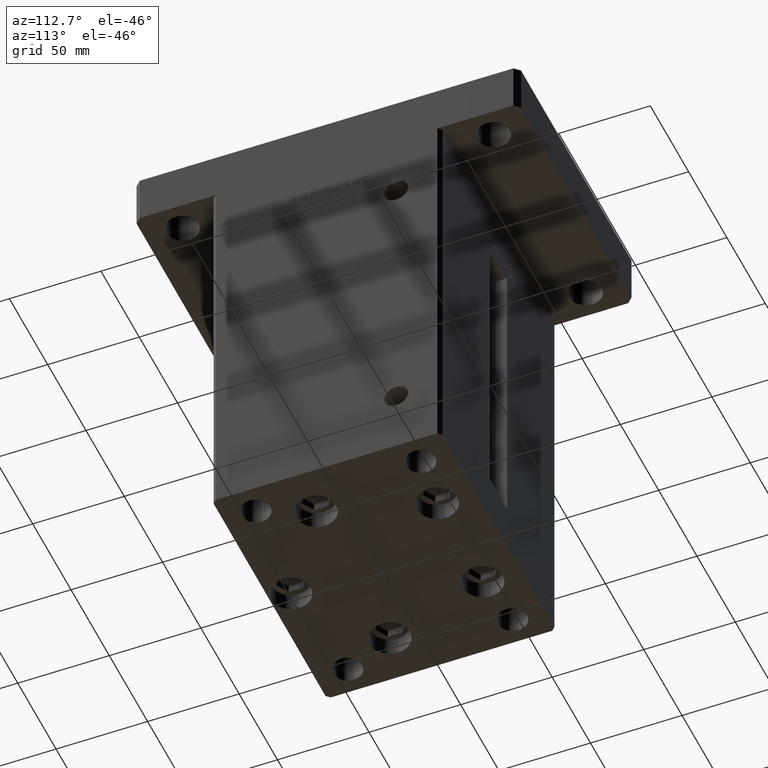
[diagram: clean part render]
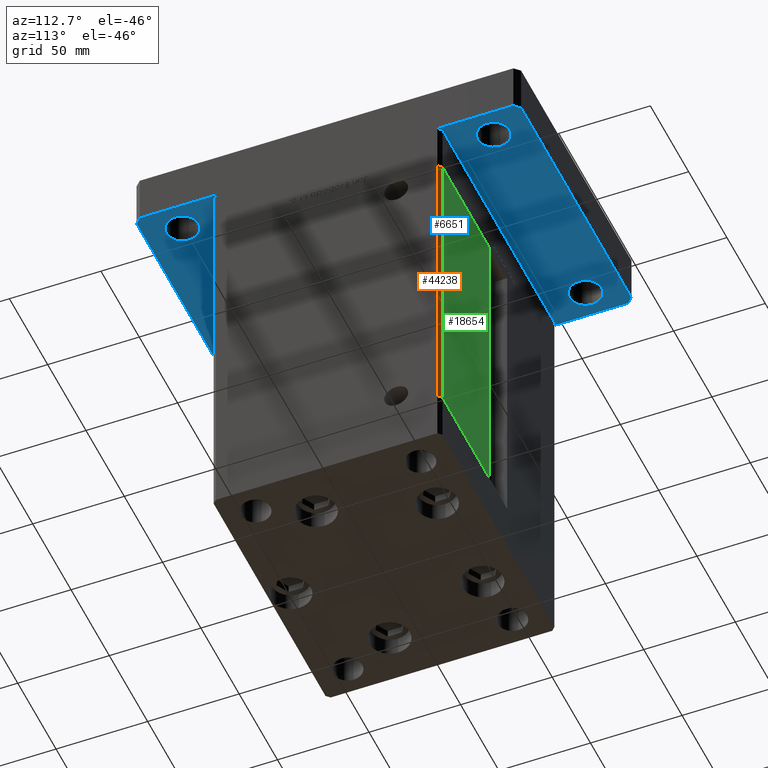
[diagram: same view with three faces highlighted in distinct colors, each labeled with its STEP entity id]
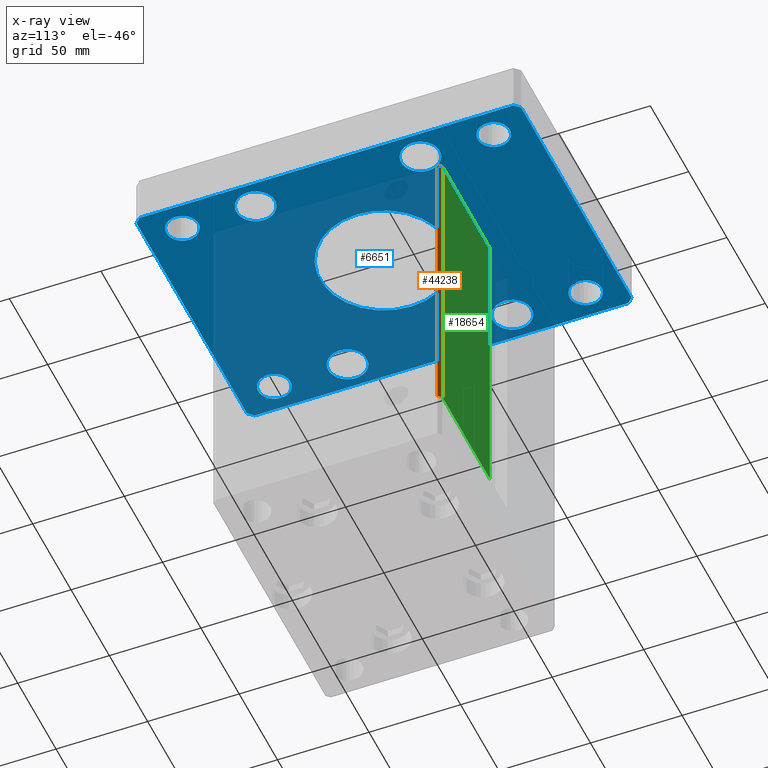
[diagram: x-ray of the same camera — body ghosted, the three highlighted faces saturated]
A machine part, auxiliary view with three faces highlighted in distinct colors.
The next image is the same camera in x-ray (body ghosted, the three faces saturated) — at least one of them is partly hidden behind the body in this view.
Their STEP definitions:

[orange] entity #44238 — the highlighted planar face has unit normal (0.7071, 0.7071, 0).
#1166 = LINE ( 'NONE', #9295, #11010 ) ;
#1273 = EDGE_CURVE ( 'NONE', #21356, #47916, #1166, .T. ) ;
#1435 = CARTESIAN_POINT ( 'NONE',  ( 73.00000000000001421, 62.50000000000000000, 167.0000000000000000 ) ) ;
#1441 = DIRECTION ( 'NONE',  ( -0.000000000000000000, -0.000000000000000000, -1.000000000000000000 ) ) ;
#2226 = PLANE ( 'NONE',  #25471 ) ;
#2291 = CARTESIAN_POINT ( 'NONE',  ( 73.00000000000001421, 62.50000000000000000, 167.0000000000000000 ) ) ;
#2343 = LINE ( 'NONE', #6400, #27917 ) ;
#4044 = CARTESIAN_POINT ( 'NONE',  ( 73.00000000000001421, 62.50000000000000000, 0.000000000000000000 ) ) ;
#4421 = ORIENTED_EDGE ( 'NONE', *, *, #10994, .F. ) ;
#6400 = CARTESIAN_POINT ( 'NONE',  ( 73.00000000000001421, 62.50000000000000000, 0.000000000000000000 ) ) ;
#7092 = ORIENTED_EDGE ( 'NONE', *, *, #9651, .F. ) ;
#9194 = CARTESIAN_POINT ( 'NONE',  ( 75.00000000000001421, 60.50000000000000000, 167.0000000000000000 ) ) ;
#9295 = CARTESIAN_POINT ( 'NONE',  ( 75.00000000000001421, 60.50000000000000000, 167.0000000000000000 ) ) ;
#9651 = EDGE_CURVE ( 'NONE', #46211, #14485, #51801, .T. ) ;
#10550 = VECTOR ( 'NONE', #39588, 1000.000000000000000 ) ;
#10662 = VECTOR ( 'NONE', #26695, 1000.000000000000114 ) ;
#10994 = EDGE_CURVE ( 'NONE', #14485, #47916, #2343, .T. ) ;
#11010 = VECTOR ( 'NONE', #1441, 1000.000000000000000 ) ;
#11887 = EDGE_CURVE ( 'NONE', #46211, #21356, #50025, .T. ) ;
#14014 = DIRECTION ( 'NONE',  ( 0.7071067811865474617, -0.7071067811865474617, 0.000000000000000000 ) ) ;
#14485 = VERTEX_POINT ( 'NONE', #4044 ) ;
#17972 = DIRECTION ( 'NONE',  ( 0.7071067811865475727, 0.7071067811865475727, -0.000000000000000000 ) ) ;
#18761 = DIRECTION ( 'NONE',  ( -0.7071067811865474617, 0.7071067811865474617, 0.000000000000000000 ) ) ;
#21356 = VERTEX_POINT ( 'NONE', #9194 ) ;
#25471 = AXIS2_PLACEMENT_3D ( 'NONE', #1435, #17972, #18761 ) ;
#26695 = DIRECTION ( 'NONE',  ( 0.7071067811865474617, -0.7071067811865474617, 0.000000000000000000 ) ) ;
#27917 = VECTOR ( 'NONE', #14014, 1000.000000000000114 ) ;
#31195 = CARTESIAN_POINT ( 'NONE',  ( 73.00000000000001421, 62.50000000000000000, 167.0000000000000000 ) ) ;
#39348 = FACE_OUTER_BOUND ( 'NONE', #50137, .T. ) ;
#39588 = DIRECTION ( 'NONE',  ( -0.000000000000000000, -0.000000000000000000, -1.000000000000000000 ) ) ;
#42995 = ORIENTED_EDGE ( 'NONE', *, *, #1273, .T. ) ;
#44238 = ADVANCED_FACE ( 'NONE', ( #39348 ), #2226, .T. ) ;
#45538 = CARTESIAN_POINT ( 'NONE',  ( 73.00000000000001421, 62.50000000000000000, 167.0000000000000000 ) ) ;
#46211 = VERTEX_POINT ( 'NONE', #45538 ) ;
#47243 = CARTESIAN_POINT ( 'NONE',  ( 75.00000000000001421, 60.50000000000000000, 0.000000000000000000 ) ) ;
#47602 = ORIENTED_EDGE ( 'NONE', *, *, #11887, .T. ) ;
#47916 = VERTEX_POINT ( 'NONE', #47243 ) ;
#50025 = LINE ( 'NONE', #2291, #10662 ) ;
#50137 = EDGE_LOOP ( 'NONE', ( #4421, #7092, #47602, #42995 ) ) ;
#51801 = LINE ( 'NONE', #31195, #10550 ) ;

[blue] entity #6651 — the highlighted planar face has unit normal (0, 0, 1).
#24 = DIRECTION ( 'NONE',  ( 0.000000000000000000, 0.000000000000000000, 1.000000000000000000 ) ) ;
#407 = EDGE_CURVE ( 'NONE', #42352, #47054, #39595, .T. ) ;
#545 = DIRECTION ( 'NONE',  ( 0.000000000000000000, 0.000000000000000000, -1.000000000000000000 ) ) ;
#758 = EDGE_LOOP ( 'NONE', ( #17836, #34972 ) ) ;
#1297 = VERTEX_POINT ( 'NONE', #39083 ) ;
#1691 = VERTEX_POINT ( 'NONE', #46497 ) ;
#2222 = DIRECTION ( 'NONE',  ( 0.000000000000000000, 0.000000000000000000, 1.000000000000000000 ) ) ;
#2436 = EDGE_CURVE ( 'NONE', #51688, #24666, #48639, .T. ) ;
#2475 = ORIENTED_EDGE ( 'NONE', *, *, #38041, .F. ) ;
#2719 = VERTEX_POINT ( 'NONE', #5791 ) ;
#2838 = FACE_OUTER_BOUND ( 'NONE', #8010, .T. ) ;
#3184 = DIRECTION ( 'NONE',  ( 0.000000000000000000, 0.000000000000000000, 1.000000000000000000 ) ) ;
#3204 = ORIENTED_EDGE ( 'NONE', *, *, #30582, .F. ) ;
#3282 = EDGE_LOOP ( 'NONE', ( #9761, #19150 ) ) ;
#3378 = FACE_BOUND ( 'NONE', #758, .T. ) ;
#3815 = VERTEX_POINT ( 'NONE', #36585 ) ;
#4028 = EDGE_LOOP ( 'NONE', ( #46744, #50635 ) ) ;
#4105 = CARTESIAN_POINT ( 'NONE',  ( 60.00000000000000000, 84.99999999999998579, 0.000000000000000000 ) ) ;
#4108 = VERTEX_POINT ( 'NONE', #26834 ) ;
#4196 = EDGE_CURVE ( 'NONE', #15864, #2719, #27722, .T. ) ;
#5734 = EDGE_CURVE ( 'NONE', #33268, #9595, #10438, .T. ) ;
#5791 = CARTESIAN_POINT ( 'NONE',  ( 70.50000000000000000, -45.00000000000000711, 0.000000000000000000 ) ) ;
#5885 = EDGE_CURVE ( 'NONE', #41165, #30899, #23475, .T. ) ;
#5981 = DIRECTION ( 'NONE',  ( 1.000000000000000000, 0.000000000000000000, 0.000000000000000000 ) ) ;
#6076 = DIRECTION ( 'NONE',  ( 0.000000000000000000, 0.000000000000000000, 1.000000000000000000 ) ) ;
#6361 = CARTESIAN_POINT ( 'NONE',  ( -75.00000000000001421, 102.0000000000000000, 0.000000000000000000 ) ) ;
#6651 = ADVANCED_FACE ( 'NONE', ( #31582, #2838, #44565, #15325, #3378, #20175, #48111, #52703, #52968, #10986 ), #27518, .F. ) ;
#6739 = CARTESIAN_POINT ( 'NONE',  ( -74.99999999999998579, -102.0000000000000142, 0.000000000000000000 ) ) ;
#6763 = CARTESIAN_POINT ( 'NONE',  ( -60.00000000000000711, 84.99999999999997158, 0.000000000000000000 ) ) ;
#7219 = AXIS2_PLACEMENT_3D ( 'NONE', #52911, #36652, #32860 ) ;
#7292 = DIRECTION ( 'NONE',  ( 1.000000000000000000, 0.000000000000000000, 0.000000000000000000 ) ) ;
#7387 = DIRECTION ( 'NONE',  ( 0.000000000000000000, 0.000000000000000000, 1.000000000000000000 ) ) ;
#7448 = CARTESIAN_POINT ( 'NONE',  ( -71.99999999999998579, -105.0000000000000142, 0.000000000000000000 ) ) ;
#7457 = DIRECTION ( 'NONE',  ( 0.000000000000000000, 0.000000000000000000, 1.000000000000000000 ) ) ;
#7588 = ORIENTED_EDGE ( 'NONE', *, *, #31011, .F. ) ;
#7719 = DIRECTION ( 'NONE',  ( 1.000000000000000000, 7.709882115452476194E-16, 0.000000000000000000 ) ) ;
#7771 = VECTOR ( 'NONE', #7719, 1000.000000000000000 ) ;
#7883 = AXIS2_PLACEMENT_3D ( 'NONE', #30719, #42362, #47508 ) ;
#8010 = EDGE_LOOP ( 'NONE', ( #26256, #42570, #7588, #17842, #28866, #2475, #33218, #3204 ) ) ;
#8121 = CIRCLE ( 'NONE', #22825, 8.750000000000007105 ) ;
#8239 = DIRECTION ( 'NONE',  ( 1.000000000000000000, 0.000000000000000000, 0.000000000000000000 ) ) ;
#8337 = EDGE_CURVE ( 'NONE', #1691, #22983, #9660, .T. ) ;
#8406 = CARTESIAN_POINT ( 'NONE',  ( 0.000000000000000000, 0.000000000000000000, 0.000000000000000000 ) ) ;
#9432 = EDGE_LOOP ( 'NONE', ( #41305, #46581 ) ) ;
#9595 = VERTEX_POINT ( 'NONE', #43638 ) ;
#9660 = CIRCLE ( 'NONE', #25258, 8.750000000000007105 ) ;
#9714 = CIRCLE ( 'NONE', #52114, 8.750000000000007105 ) ;
#9761 = ORIENTED_EDGE ( 'NONE', *, *, #31499, .T. ) ;
#10438 = CIRCLE ( 'NONE', #24289, 8.750000000000007105 ) ;
#10986 = FACE_BOUND ( 'NONE', #9432, .T. ) ;
#11102 = DIRECTION ( 'NONE',  ( 0.000000000000000000, 0.000000000000000000, 1.000000000000000000 ) ) ;
#11289 = AXIS2_PLACEMENT_3D ( 'NONE', #35756, #44402, #7292 ) ;
#12612 = VERTEX_POINT ( 'NONE', #53008 ) ;
#12901 = VERTEX_POINT ( 'NONE', #49160 ) ;
#13089 = CARTESIAN_POINT ( 'NONE',  ( -49.49999999999999289, -45.00000000000000000, 0.000000000000000000 ) ) ;
#13114 = VERTEX_POINT ( 'NONE', #43946 ) ;
#13130 = VECTOR ( 'NONE', #39243, 1000.000000000000114 ) ;
#13850 = ORIENTED_EDGE ( 'NONE', *, *, #4196, .T. ) ;
#14017 = CARTESIAN_POINT ( 'NONE',  ( -74.99999999999998579, -102.0000000000000142, 0.000000000000000000 ) ) ;
#14020 = VERTEX_POINT ( 'NONE', #23635 ) ;
#14037 = LINE ( 'NONE', #23236, #21336 ) ;
#14106 = DIRECTION ( 'NONE',  ( 6.802837160693364103E-17, 1.000000000000000000, 0.000000000000000000 ) ) ;
#14579 = CIRCLE ( 'NONE', #18020, 10.49999999999999467 ) ;
#15125 = LINE ( 'NONE', #22987, #13130 ) ;
#15314 = CARTESIAN_POINT ( 'NONE',  ( -60.00000000000000711, 84.99999999999997158, 0.000000000000000000 ) ) ;
#15325 = FACE_BOUND ( 'NONE', #32996, .T. ) ;
#15792 = VECTOR ( 'NONE', #42026, 1000.000000000000000 ) ;
#15864 = VERTEX_POINT ( 'NONE', #24127 ) ;
#15882 = ORIENTED_EDGE ( 'NONE', *, *, #52105, .T. ) ;
#15931 = DIRECTION ( 'NONE',  ( 1.000000000000000000, 0.000000000000000000, 0.000000000000000000 ) ) ;
#16305 = AXIS2_PLACEMENT_3D ( 'NONE', #50711, #17656, #5981 ) ;
#16916 = CARTESIAN_POINT ( 'NONE',  ( 60.00000000000000000, 45.00000000000000711, 0.000000000000000000 ) ) ;
#17050 = EDGE_CURVE ( 'NONE', #37082, #40187, #53052, .T. ) ;
#17413 = EDGE_LOOP ( 'NONE', ( #40885, #51934 ) ) ;
#17656 = DIRECTION ( 'NONE',  ( 0.000000000000000000, 0.000000000000000000, 1.000000000000000000 ) ) ;
#17836 = ORIENTED_EDGE ( 'NONE', *, *, #47307, .T. ) ;
#17842 = ORIENTED_EDGE ( 'NONE', *, *, #36213, .F. ) ;
#17926 = DIRECTION ( 'NONE',  ( 0.000000000000000000, 0.000000000000000000, 1.000000000000000000 ) ) ;
#18020 = AXIS2_PLACEMENT_3D ( 'NONE', #16916, #32638, #8239 ) ;
#18178 = LINE ( 'NONE', #51231, #41703 ) ;
#18276 = CARTESIAN_POINT ( 'NONE',  ( -72.00000000000002842, 105.0000000000000000, 0.000000000000000000 ) ) ;
#18924 = CARTESIAN_POINT ( 'NONE',  ( 0.000000000000000000, 0.000000000000000000, 0.000000000000000000 ) ) ;
#19150 = ORIENTED_EDGE ( 'NONE', *, *, #47372, .T. ) ;
#20175 = FACE_BOUND ( 'NONE', #17413, .T. ) ;
#20589 = CARTESIAN_POINT ( 'NONE',  ( 35.00000000000000711, 4.286263797015737285E-15, 0.000000000000000000 ) ) ;
#21336 = VECTOR ( 'NONE', #43277, 1000.000000000000114 ) ;
#22228 = CIRCLE ( 'NONE', #53362, 10.50000000000000178 ) ;
#22825 = AXIS2_PLACEMENT_3D ( 'NONE', #6763, #36026, #52557 ) ;
#22983 = VERTEX_POINT ( 'NONE', #26551 ) ;
#22987 = CARTESIAN_POINT ( 'NONE',  ( -72.00000000000002842, 105.0000000000000000, 0.000000000000000000 ) ) ;
#23081 = CIRCLE ( 'NONE', #36074, 35.00000000000000711 ) ;
#23115 = EDGE_CURVE ( 'NONE', #26470, #51688, #27335, .T. ) ;
#23236 = CARTESIAN_POINT ( 'NONE',  ( 72.00000000000001421, -104.9999999999999005, 0.000000000000000000 ) ) ;
#23278 = DIRECTION ( 'NONE',  ( 0.7071067811865474617, -0.7071067811865474617, 0.000000000000000000 ) ) ;
#23475 = CIRCLE ( 'NONE', #7883, 8.750000000000007105 ) ;
#23635 = CARTESIAN_POINT ( 'NONE',  ( -49.49999999999999289, 45.00000000000001421, 0.000000000000000000 ) ) ;
#23874 = AXIS2_PLACEMENT_3D ( 'NONE', #27973, #7387, #23921 ) ;
#23921 = DIRECTION ( 'NONE',  ( 1.000000000000000000, 0.000000000000000000, 0.000000000000000000 ) ) ;
#23974 = CIRCLE ( 'NONE', #31745, 8.750000000000007105 ) ;
#24127 = CARTESIAN_POINT ( 'NONE',  ( 49.50000000000000000, -45.00000000000000711, 0.000000000000000000 ) ) ;
#24289 = AXIS2_PLACEMENT_3D ( 'NONE', #15314, #31844, #37225 ) ;
#24430 = DIRECTION ( 'NONE',  ( 1.000000000000000000, 0.000000000000000000, 0.000000000000000000 ) ) ;
#24666 = VERTEX_POINT ( 'NONE', #27103 ) ;
#25258 = AXIS2_PLACEMENT_3D ( 'NONE', #43193, #6076, #39925 ) ;
#25832 = CIRCLE ( 'NONE', #16305, 10.50000000000000178 ) ;
#26096 = VERTEX_POINT ( 'NONE', #18276 ) ;
#26256 = ORIENTED_EDGE ( 'NONE', *, *, #2436, .F. ) ;
#26470 = VERTEX_POINT ( 'NONE', #14017 ) ;
#26551 = CARTESIAN_POINT ( 'NONE',  ( 51.24999999999998579, 84.99999999999998579, 0.000000000000000000 ) ) ;
#26748 = EDGE_CURVE ( 'NONE', #30899, #41165, #23974, .T. ) ;
#26834 = CARTESIAN_POINT ( 'NONE',  ( 75.00000000000000000, -101.9999999999999005, 0.000000000000000000 ) ) ;
#26885 = CARTESIAN_POINT ( 'NONE',  ( 59.99999999999997158, -85.00000000000001421, 0.000000000000000000 ) ) ;
#27101 = ORIENTED_EDGE ( 'NONE', *, *, #33927, .T. ) ;
#27103 = CARTESIAN_POINT ( 'NONE',  ( 72.00000000000001421, -104.9999999999999005, 0.000000000000000000 ) ) ;
#27335 = LINE ( 'NONE', #6739, #53290 ) ;
#27441 = CARTESIAN_POINT ( 'NONE',  ( 72.00000000000004263, 105.0000000000000284, 0.000000000000000000 ) ) ;
#27518 = PLANE ( 'NONE',  #44225 ) ;
#27684 = CARTESIAN_POINT ( 'NONE',  ( 68.74999999999997158, -85.00000000000001421, 0.000000000000000000 ) ) ;
#27722 = CIRCLE ( 'NONE', #11289, 10.49999999999999467 ) ;
#27973 = CARTESIAN_POINT ( 'NONE',  ( 60.00000000000000000, 45.00000000000000711, 0.000000000000000000 ) ) ;
#28136 = EDGE_LOOP ( 'NONE', ( #45000, #44144 ) ) ;
#28236 = VERTEX_POINT ( 'NONE', #36087 ) ;
#28372 = CIRCLE ( 'NONE', #53443, 10.49999999999999467 ) ;
#28866 = ORIENTED_EDGE ( 'NONE', *, *, #51022, .F. ) ;
#29036 = CARTESIAN_POINT ( 'NONE',  ( 75.00000000000001421, 102.0000000000000142, 0.000000000000000000 ) ) ;
#29136 = EDGE_LOOP ( 'NONE', ( #15882, #40071 ) ) ;
#29293 = CARTESIAN_POINT ( 'NONE',  ( -51.24999999999996447, -85.00000000000001421, 0.000000000000000000 ) ) ;
#29536 = DIRECTION ( 'NONE',  ( -1.000000000000000000, 0.000000000000000000, 0.000000000000000000 ) ) ;
#29760 = CIRCLE ( 'NONE', #34147, 10.50000000000000178 ) ;
#30582 = EDGE_CURVE ( 'NONE', #24666, #4108, #14037, .T. ) ;
#30719 = CARTESIAN_POINT ( 'NONE',  ( -59.99999999999997158, -85.00000000000001421, 0.000000000000000000 ) ) ;
#30899 = VERTEX_POINT ( 'NONE', #37561 ) ;
#31011 = EDGE_CURVE ( 'NONE', #12612, #26470, #43470, .T. ) ;
#31426 = EDGE_CURVE ( 'NONE', #33570, #3815, #23081, .T. ) ;
#31499 = EDGE_CURVE ( 'NONE', #28236, #14020, #22228, .T. ) ;
#31582 = FACE_BOUND ( 'NONE', #28136, .T. ) ;
#31745 = AXIS2_PLACEMENT_3D ( 'NONE', #48666, #37258, #53266 ) ;
#31844 = DIRECTION ( 'NONE',  ( 0.000000000000000000, 0.000000000000000000, 1.000000000000000000 ) ) ;
#32021 = EDGE_CURVE ( 'NONE', #3815, #33570, #49971, .T. ) ;
#32633 = VECTOR ( 'NONE', #47290, 1000.000000000000000 ) ;
#32638 = DIRECTION ( 'NONE',  ( 0.000000000000000000, 0.000000000000000000, 1.000000000000000000 ) ) ;
#32860 = DIRECTION ( 'NONE',  ( 1.000000000000000000, 0.000000000000000000, 0.000000000000000000 ) ) ;
#32996 = EDGE_LOOP ( 'NONE', ( #37847, #34468 ) ) ;
#33218 = ORIENTED_EDGE ( 'NONE', *, *, #37289, .F. ) ;
#33268 = VERTEX_POINT ( 'NONE', #36440 ) ;
#33544 = AXIS2_PLACEMENT_3D ( 'NONE', #26885, #2222, #52075 ) ;
#33570 = VERTEX_POINT ( 'NONE', #20589 ) ;
#33927 = EDGE_CURVE ( 'NONE', #2719, #15864, #28372, .T. ) ;
#34147 = AXIS2_PLACEMENT_3D ( 'NONE', #35759, #11102, #44137 ) ;
#34463 = DIRECTION ( 'NONE',  ( 1.000000000000000000, 0.000000000000000000, 0.000000000000000000 ) ) ;
#34468 = ORIENTED_EDGE ( 'NONE', *, *, #8337, .T. ) ;
#34860 = EDGE_CURVE ( 'NONE', #13114, #12901, #14579, .T. ) ;
#34972 = ORIENTED_EDGE ( 'NONE', *, *, #5734, .T. ) ;
#35174 = EDGE_CURVE ( 'NONE', #40187, #37082, #25832, .T. ) ;
#35444 = DIRECTION ( 'NONE',  ( 0.000000000000000000, 0.000000000000000000, -1.000000000000000000 ) ) ;
#35756 = CARTESIAN_POINT ( 'NONE',  ( 60.00000000000000000, -45.00000000000000711, 0.000000000000000000 ) ) ;
#35759 = CARTESIAN_POINT ( 'NONE',  ( -60.00000000000000000, 45.00000000000001421, 0.000000000000000000 ) ) ;
#35836 = DIRECTION ( 'NONE',  ( -1.000000000000000000, -1.927470528863118062E-16, 0.000000000000000000 ) ) ;
#36026 = DIRECTION ( 'NONE',  ( 0.000000000000000000, 0.000000000000000000, 1.000000000000000000 ) ) ;
#36074 = AXIS2_PLACEMENT_3D ( 'NONE', #8406, #545, #29536 ) ;
#36087 = CARTESIAN_POINT ( 'NONE',  ( -70.50000000000000000, 45.00000000000001421, 0.000000000000000000 ) ) ;
#36213 = EDGE_CURVE ( 'NONE', #26096, #12612, #15125, .T. ) ;
#36440 = CARTESIAN_POINT ( 'NONE',  ( -51.25000000000000000, 84.99999999999997158, 0.000000000000000000 ) ) ;
#36585 = CARTESIAN_POINT ( 'NONE',  ( -35.00000000000000711, 0.000000000000000000, 0.000000000000000000 ) ) ;
#36652 = DIRECTION ( 'NONE',  ( 0.000000000000000000, 0.000000000000000000, 1.000000000000000000 ) ) ;
#36896 = LINE ( 'NONE', #27441, #45448 ) ;
#37082 = VERTEX_POINT ( 'NONE', #44750 ) ;
#37225 = DIRECTION ( 'NONE',  ( 1.000000000000000000, 0.000000000000000000, 0.000000000000000000 ) ) ;
#37230 = EDGE_CURVE ( 'NONE', #22983, #1691, #9714, .T. ) ;
#37258 = DIRECTION ( 'NONE',  ( 0.000000000000000000, 0.000000000000000000, 1.000000000000000000 ) ) ;
#37289 = EDGE_CURVE ( 'NONE', #4108, #1297, #18178, .T. ) ;
#37424 = CARTESIAN_POINT ( 'NONE',  ( -60.00000000000000000, 45.00000000000001421, 0.000000000000000000 ) ) ;
#37561 = CARTESIAN_POINT ( 'NONE',  ( -68.74999999999997158, -85.00000000000001421, 0.000000000000000000 ) ) ;
#37847 = ORIENTED_EDGE ( 'NONE', *, *, #37230, .T. ) ;
#38041 = EDGE_CURVE ( 'NONE', #1297, #40158, #45557, .T. ) ;
#38588 = EDGE_LOOP ( 'NONE', ( #13850, #27101 ) ) ;
#39083 = CARTESIAN_POINT ( 'NONE',  ( 75.00000000000001421, 102.0000000000000142, 0.000000000000000000 ) ) ;
#39243 = DIRECTION ( 'NONE',  ( -0.7071067811865459074, -0.7071067811865491270, 0.000000000000000000 ) ) ;
#39595 = CIRCLE ( 'NONE', #33544, 8.750000000000007105 ) ;
#39925 = DIRECTION ( 'NONE',  ( 1.000000000000000000, 0.000000000000000000, 0.000000000000000000 ) ) ;
#40071 = ORIENTED_EDGE ( 'NONE', *, *, #34860, .T. ) ;
#40158 = VERTEX_POINT ( 'NONE', #41536 ) ;
#40187 = VERTEX_POINT ( 'NONE', #13089 ) ;
#40240 = CARTESIAN_POINT ( 'NONE',  ( 0.000000000000000000, 0.000000000000000000, 0.000000000000000000 ) ) ;
#40263 = CIRCLE ( 'NONE', #44550, 8.750000000000007105 ) ;
#40303 = CIRCLE ( 'NONE', #23874, 10.49999999999999467 ) ;
#40885 = ORIENTED_EDGE ( 'NONE', *, *, #17050, .T. ) ;
#41165 = VERTEX_POINT ( 'NONE', #29293 ) ;
#41305 = ORIENTED_EDGE ( 'NONE', *, *, #407, .T. ) ;
#41536 = CARTESIAN_POINT ( 'NONE',  ( 72.00000000000004263, 105.0000000000000284, 0.000000000000000000 ) ) ;
#41703 = VECTOR ( 'NONE', #14106, 1000.000000000000000 ) ;
#42026 = DIRECTION ( 'NONE',  ( -0.7071067811865426878, 0.7071067811865524577, 0.000000000000000000 ) ) ;
#42352 = VERTEX_POINT ( 'NONE', #51747 ) ;
#42362 = DIRECTION ( 'NONE',  ( 0.000000000000000000, 0.000000000000000000, 1.000000000000000000 ) ) ;
#42570 = ORIENTED_EDGE ( 'NONE', *, *, #23115, .F. ) ;
#43193 = CARTESIAN_POINT ( 'NONE',  ( 60.00000000000000000, 84.99999999999998579, 0.000000000000000000 ) ) ;
#43277 = DIRECTION ( 'NONE',  ( 0.7071067811865459074, 0.7071067811865491270, 0.000000000000000000 ) ) ;
#43470 = LINE ( 'NONE', #6361, #32633 ) ;
#43638 = CARTESIAN_POINT ( 'NONE',  ( -68.75000000000000000, 84.99999999999997158, 0.000000000000000000 ) ) ;
#43870 = AXIS2_PLACEMENT_3D ( 'NONE', #18924, #35444, #51972 ) ;
#43946 = CARTESIAN_POINT ( 'NONE',  ( 70.50000000000000000, 45.00000000000000711, 0.000000000000000000 ) ) ;
#44027 = DIRECTION ( 'NONE',  ( 1.000000000000000000, 0.000000000000000000, -0.000000000000000000 ) ) ;
#44137 = DIRECTION ( 'NONE',  ( 1.000000000000000000, 0.000000000000000000, 0.000000000000000000 ) ) ;
#44144 = ORIENTED_EDGE ( 'NONE', *, *, #31426, .F. ) ;
#44225 = AXIS2_PLACEMENT_3D ( 'NONE', #40240, #7457, #44027 ) ;
#44402 = DIRECTION ( 'NONE',  ( 0.000000000000000000, 0.000000000000000000, 1.000000000000000000 ) ) ;
#44550 = AXIS2_PLACEMENT_3D ( 'NONE', #45757, #51170, #50644 ) ;
#44565 = FACE_BOUND ( 'NONE', #4028, .T. ) ;
#44750 = CARTESIAN_POINT ( 'NONE',  ( -70.50000000000000000, -45.00000000000000000, 0.000000000000000000 ) ) ;
#45000 = ORIENTED_EDGE ( 'NONE', *, *, #32021, .F. ) ;
#45448 = VECTOR ( 'NONE', #35836, 1000.000000000000000 ) ;
#45557 = LINE ( 'NONE', #29036, #15792 ) ;
#45757 = CARTESIAN_POINT ( 'NONE',  ( 59.99999999999997158, -85.00000000000001421, 0.000000000000000000 ) ) ;
#46497 = CARTESIAN_POINT ( 'NONE',  ( 68.75000000000000000, 84.99999999999998579, 0.000000000000000000 ) ) ;
#46581 = ORIENTED_EDGE ( 'NONE', *, *, #50104, .T. ) ;
#46744 = ORIENTED_EDGE ( 'NONE', *, *, #26748, .T. ) ;
#47054 = VERTEX_POINT ( 'NONE', #27684 ) ;
#47290 = DIRECTION ( 'NONE',  ( 1.360567432138672081E-16, -1.000000000000000000, 0.000000000000000000 ) ) ;
#47307 = EDGE_CURVE ( 'NONE', #9595, #33268, #8121, .T. ) ;
#47372 = EDGE_CURVE ( 'NONE', #14020, #28236, #29760, .T. ) ;
#47508 = DIRECTION ( 'NONE',  ( 1.000000000000000000, 0.000000000000000000, 0.000000000000000000 ) ) ;
#48111 = FACE_BOUND ( 'NONE', #38588, .T. ) ;
#48639 = LINE ( 'NONE', #53240, #7771 ) ;
#48666 = CARTESIAN_POINT ( 'NONE',  ( -59.99999999999997158, -85.00000000000001421, 0.000000000000000000 ) ) ;
#49160 = CARTESIAN_POINT ( 'NONE',  ( 49.50000000000000000, 45.00000000000000711, 0.000000000000000000 ) ) ;
#49971 = CIRCLE ( 'NONE', #43870, 35.00000000000000711 ) ;
#50104 = EDGE_CURVE ( 'NONE', #47054, #42352, #40263, .T. ) ;
#50635 = ORIENTED_EDGE ( 'NONE', *, *, #5885, .T. ) ;
#50644 = DIRECTION ( 'NONE',  ( 1.000000000000000000, 0.000000000000000000, 0.000000000000000000 ) ) ;
#50711 = CARTESIAN_POINT ( 'NONE',  ( -60.00000000000000000, -45.00000000000000000, 0.000000000000000000 ) ) ;
#51022 = EDGE_CURVE ( 'NONE', #40158, #26096, #36896, .T. ) ;
#51170 = DIRECTION ( 'NONE',  ( 0.000000000000000000, 0.000000000000000000, 1.000000000000000000 ) ) ;
#51231 = CARTESIAN_POINT ( 'NONE',  ( 75.00000000000000000, -101.9999999999999005, 0.000000000000000000 ) ) ;
#51688 = VERTEX_POINT ( 'NONE', #7448 ) ;
#51747 = CARTESIAN_POINT ( 'NONE',  ( 51.24999999999995737, -85.00000000000001421, 0.000000000000000000 ) ) ;
#51934 = ORIENTED_EDGE ( 'NONE', *, *, #35174, .T. ) ;
#51972 = DIRECTION ( 'NONE',  ( -1.000000000000000000, 0.000000000000000000, 0.000000000000000000 ) ) ;
#52075 = DIRECTION ( 'NONE',  ( 1.000000000000000000, 0.000000000000000000, 0.000000000000000000 ) ) ;
#52105 = EDGE_CURVE ( 'NONE', #12901, #13114, #40303, .T. ) ;
#52114 = AXIS2_PLACEMENT_3D ( 'NONE', #4105, #24, #24430 ) ;
#52557 = DIRECTION ( 'NONE',  ( 1.000000000000000000, 0.000000000000000000, 0.000000000000000000 ) ) ;
#52703 = FACE_BOUND ( 'NONE', #29136, .T. ) ;
#52911 = CARTESIAN_POINT ( 'NONE',  ( -60.00000000000000000, -45.00000000000000000, 0.000000000000000000 ) ) ;
#52968 = FACE_BOUND ( 'NONE', #3282, .T. ) ;
#53008 = CARTESIAN_POINT ( 'NONE',  ( -75.00000000000001421, 102.0000000000000000, 0.000000000000000000 ) ) ;
#53052 = CIRCLE ( 'NONE', #7219, 10.50000000000000178 ) ;
#53240 = CARTESIAN_POINT ( 'NONE',  ( -71.99999999999998579, -105.0000000000000142, 0.000000000000000000 ) ) ;
#53266 = DIRECTION ( 'NONE',  ( 1.000000000000000000, 0.000000000000000000, 0.000000000000000000 ) ) ;
#53290 = VECTOR ( 'NONE', #23278, 1000.000000000000114 ) ;
#53362 = AXIS2_PLACEMENT_3D ( 'NONE', #37424, #17926, #34463 ) ;
#53443 = AXIS2_PLACEMENT_3D ( 'NONE', #53590, #3184, #15931 ) ;
#53590 = CARTESIAN_POINT ( 'NONE',  ( 60.00000000000000000, -45.00000000000000711, 0.000000000000000000 ) ) ;

[green] entity #18654 — the highlighted planar face has unit normal (-0, -1, 0).
#646 = VECTOR ( 'NONE', #35318, 1000.000000000000000 ) ;
#2339 = ORIENTED_EDGE ( 'NONE', *, *, #32283, .T. ) ;
#3295 = VERTEX_POINT ( 'NONE', #9462 ) ;
#4044 = CARTESIAN_POINT ( 'NONE',  ( 73.00000000000001421, 62.50000000000000000, 0.000000000000000000 ) ) ;
#4754 = ORIENTED_EDGE ( 'NONE', *, *, #29062, .T. ) ;
#4826 = VECTOR ( 'NONE', #22232, 1000.000000000000000 ) ;
#6366 = AXIS2_PLACEMENT_3D ( 'NONE', #14266, #35129, #26729 ) ;
#8822 = CARTESIAN_POINT ( 'NONE',  ( 11.25000000000000178, 62.49999999999999289, 0.000000000000000000 ) ) ;
#9462 = CARTESIAN_POINT ( 'NONE',  ( 11.24999999999999112, 62.49999999999999289, 167.0000000000000000 ) ) ;
#9651 = EDGE_CURVE ( 'NONE', #46211, #14485, #51801, .T. ) ;
#10550 = VECTOR ( 'NONE', #39588, 1000.000000000000000 ) ;
#11904 = VECTOR ( 'NONE', #27937, 1000.000000000000000 ) ;
#14266 = CARTESIAN_POINT ( 'NONE',  ( -11.25000000000000178, 62.49999999999999289, 167.0000000000000000 ) ) ;
#14485 = VERTEX_POINT ( 'NONE', #4044 ) ;
#18326 = FACE_OUTER_BOUND ( 'NONE', #27742, .T. ) ;
#18654 = ADVANCED_FACE ( 'NONE', ( #18326 ), #34852, .F. ) ;
#22232 = DIRECTION ( 'NONE',  ( -1.000000000000000000, 1.123707514802790025E-16, 0.000000000000000000 ) ) ;
#22493 = LINE ( 'NONE', #30631, #4826 ) ;
#23805 = EDGE_CURVE ( 'NONE', #14485, #40549, #22493, .T. ) ;
#24188 = ORIENTED_EDGE ( 'NONE', *, *, #9651, .T. ) ;
#26729 = DIRECTION ( 'NONE',  ( 1.000000000000000000, -1.123707514802790271E-16, 0.000000000000000000 ) ) ;
#27742 = EDGE_LOOP ( 'NONE', ( #35210, #2339, #4754, #24188 ) ) ;
#27937 = DIRECTION ( 'NONE',  ( 1.000000000000000000, 0.000000000000000000, 0.000000000000000000 ) ) ;
#29062 = EDGE_CURVE ( 'NONE', #3295, #46211, #40666, .T. ) ;
#30631 = CARTESIAN_POINT ( 'NONE',  ( -11.25000000000000178, 62.49999999999999289, 0.000000000000000000 ) ) ;
#31195 = CARTESIAN_POINT ( 'NONE',  ( 73.00000000000001421, 62.50000000000000000, 167.0000000000000000 ) ) ;
#32283 = EDGE_CURVE ( 'NONE', #40549, #3295, #48039, .T. ) ;
#34852 = PLANE ( 'NONE',  #6366 ) ;
#35129 = DIRECTION ( 'NONE',  ( -1.123707514802790271E-16, -1.000000000000000000, 0.000000000000000000 ) ) ;
#35210 = ORIENTED_EDGE ( 'NONE', *, *, #23805, .T. ) ;
#35318 = DIRECTION ( 'NONE',  ( -0.000000000000000000, -0.000000000000000000, 1.000000000000000000 ) ) ;
#39588 = DIRECTION ( 'NONE',  ( -0.000000000000000000, -0.000000000000000000, -1.000000000000000000 ) ) ;
#40410 = CARTESIAN_POINT ( 'NONE',  ( -11.25000000000000178, 62.49999999999999289, 167.0000000000000000 ) ) ;
#40549 = VERTEX_POINT ( 'NONE', #8822 ) ;
#40666 = LINE ( 'NONE', #40410, #11904 ) ;
#45538 = CARTESIAN_POINT ( 'NONE',  ( 73.00000000000001421, 62.50000000000000000, 167.0000000000000000 ) ) ;
#46211 = VERTEX_POINT ( 'NONE', #45538 ) ;
#47769 = CARTESIAN_POINT ( 'NONE',  ( 11.25000000000000178, 62.49999999999999289, 0.000000000000000000 ) ) ;
#48039 = LINE ( 'NONE', #47769, #646 ) ;
#51801 = LINE ( 'NONE', #31195, #10550 ) ;